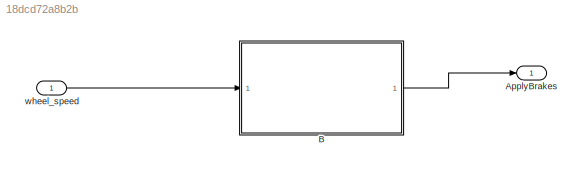
MODEL slx_18dcd72a8b2b
KIND model
CONFIG AbsTol = auto
CONFIG EnableMultiTasking = on
CONFIG FixedStep = 1.000000
CONFIG MaxStep = auto
CONFIG MinStep = auto
CONFIG RelTol = 1e-3
CONFIG SampleTimeConstraint = Unconstrained
CONFIG Solver = FixedStepAuto
CONFIG SolverName = FixedStepAuto
CONFIG StartTime = 0.0
CONFIG StopTime = 10.0
BLOCK [Outport] ApplyBrakes
  IconDisplay = Port number
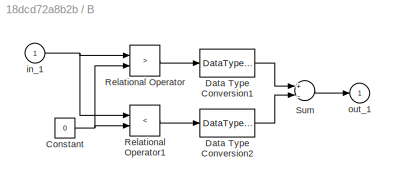
BLOCK [SubSystem] B
  Ports = [1, 1]
  RequestExecContextInheritance = off
  ShowPortLabels = none
  Variant = off
BLOCK [Constant] B/Constant
  Value = 0
BLOCK [DataTypeConversion] B/Data Type Conversion1
  OutDataTypeStr = double
BLOCK [DataTypeConversion] B/Data Type Conversion2
  OutDataTypeStr = double
BLOCK [RelationalOperator] B/Relational Operator
  Operator = >
  OutDataTypeStr = boolean
  Ports = [2, 1]
BLOCK [RelationalOperator] B/Relational Operator1
  Operator = <
  OutDataTypeStr = boolean
  Ports = [2, 1]
BLOCK [Sum] B/Sum
  Inputs = +-
  Ports = [2, 1]
BLOCK [Inport] B/in_1
  IconDisplay = Port number
BLOCK [Outport] B/out_1
  IconDisplay = Port number
  InitialOutput = 0
BLOCK [Inport] wheel_speed
  IconDisplay = Port number
  SampleTime = 0
NET B/Constant:1 -> B/Relational Operator1:2, B/Relational Operator:2
LINE B/Data Type Conversion1:1 -> B/Sum:1
LINE B/Data Type Conversion2:1 -> B/Sum:2
LINE B/Relational Operator1:1 -> B/Data Type Conversion2:1
LINE B/Relational Operator:1 -> B/Data Type Conversion1:1
LINE B/Sum:1 -> B/out_1:1
NET B/in_1:1 -> B/Relational Operator1:1, B/Relational Operator:1
LINE B:1 -> ApplyBrakes:1
LINE wheel_speed:1 -> B:1
note: NET lines group one-source signal fan-out (src -> all destinations, sorted); 1:1 wires keep LINE
